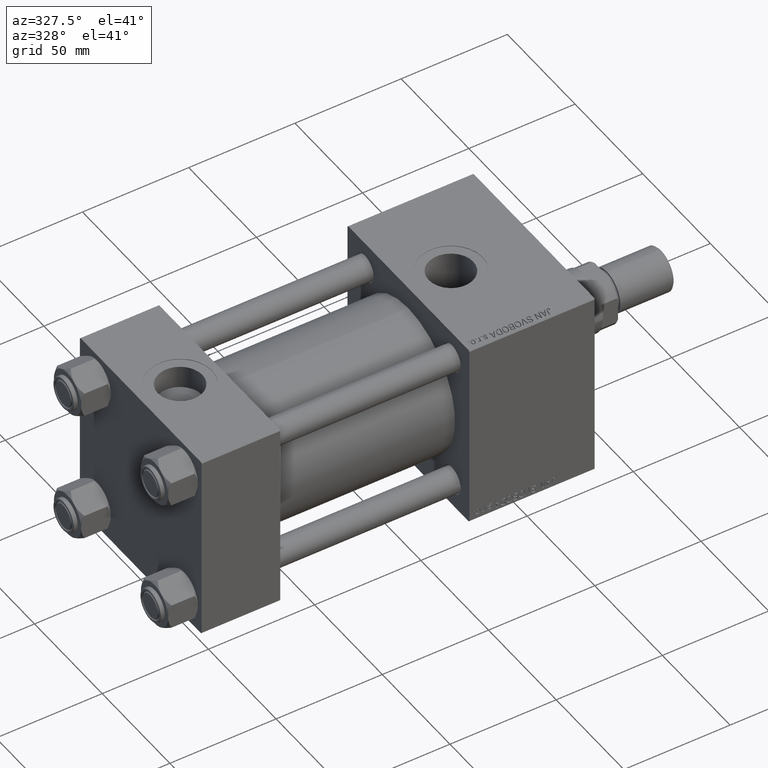
[diagram: clean part render]
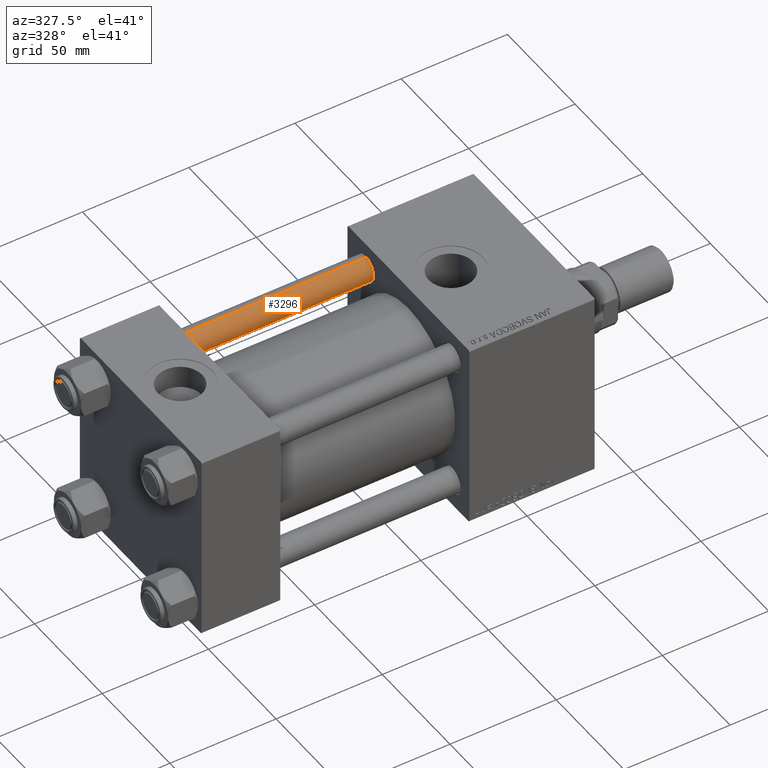
[diagram: same view with one face highlighted and labeled with its STEP entity id]
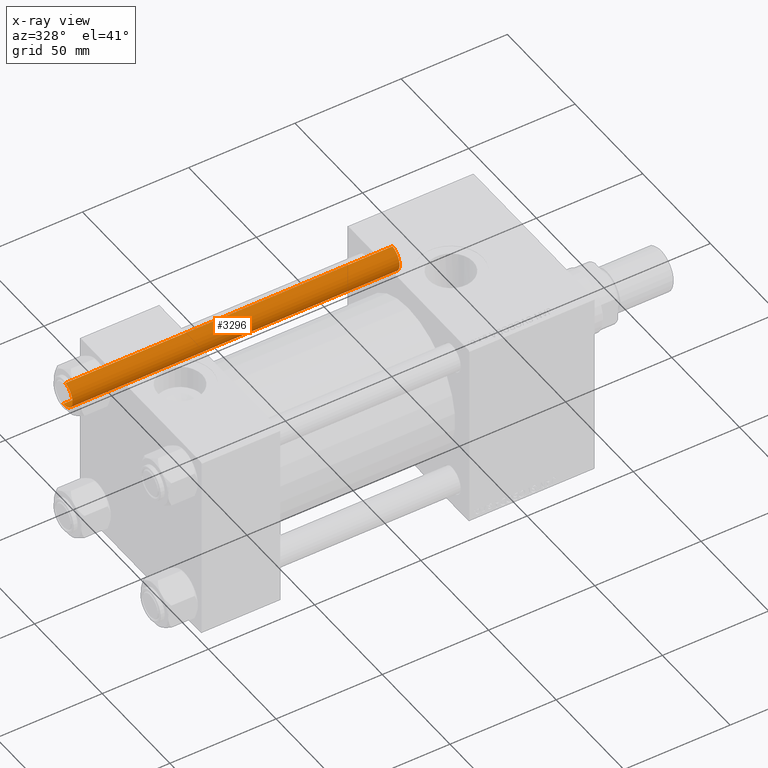
[diagram: x-ray of the same camera — body ghosted, the highlighted face saturated]
A machine part, auxiliary view. The second image highlights one B-rep face of the part: STEP entity #3296.
The next image is the same camera in x-ray: the body ghosted, the highlighted face saturated — about 0% of this face is hidden behind the body in this view.
In plain terms, the highlighted cylindrical surface (edge-blend (fillet) strip) has radius 6 mm, axis along (-1, 0, 0).
Its self-contained STEP definition (entity closure, byte-faithful):
#365 = DIRECTION ( 'NONE',  ( -0.000000000000000000, -0.000000000000000000, -1.000000000000000000 ) ) ;
#899 = DIRECTION ( 'NONE',  ( -0.000000000000000000, -0.000000000000000000, -1.000000000000000000 ) ) ;
#1455 = EDGE_CURVE ( 'NONE', #50665, #29402, #16563, .T. ) ;
#3221 = DIRECTION ( 'NONE',  ( 0.000000000000000000, 0.000000000000000000, -1.000000000000000000 ) ) ;
#3296 = ADVANCED_FACE ( 'NONE', ( #42303 ), #50260, .T. ) ;
#5072 = DIRECTION ( 'NONE',  ( -0.000000000000000000, -0.000000000000000000, -1.000000000000000000 ) ) ;
#7425 = VECTOR ( 'NONE', #5072, 1000.000000000000000 ) ;
#7968 = ORIENTED_EDGE ( 'NONE', *, *, #31673, .T. ) ;
#10204 = EDGE_LOOP ( 'NONE', ( #20978, #37414, #43848, #7968 ) ) ;
#10908 = DIRECTION ( 'NONE',  ( -1.000000000000000000, 0.000000000000000000, 0.000000000000000000 ) ) ;
#14173 = DIRECTION ( 'NONE',  ( -0.000000000000000000, -0.000000000000000000, 1.000000000000000000 ) ) ;
#15040 = CIRCLE ( 'NONE', #29846, 6.000000000000000888 ) ;
#16563 = LINE ( 'NONE', #36111, #28763 ) ;
#17525 = CARTESIAN_POINT ( 'NONE',  ( 0.000000000000000000, 0.000000000000000000, 0.4999999999999726885 ) ) ;
#17965 = CIRCLE ( 'NONE', #41015, 6.000000000000000888 ) ;
#20978 = ORIENTED_EDGE ( 'NONE', *, *, #34101, .F. ) ;
#22007 = VERTEX_POINT ( 'NONE', #37680 ) ;
#26611 = CARTESIAN_POINT ( 'NONE',  ( 0.000000000000000000, 0.000000000000000000, 155.0000000000000000 ) ) ;
#28763 = VECTOR ( 'NONE', #899, 1000.000000000000000 ) ;
#29402 = VERTEX_POINT ( 'NONE', #38475 ) ;
#29846 = AXIS2_PLACEMENT_3D ( 'NONE', #39456, #3221, #50777 ) ;
#31673 = EDGE_CURVE ( 'NONE', #29402, #22007, #17965, .T. ) ;
#34101 = EDGE_CURVE ( 'NONE', #44923, #22007, #35426, .T. ) ;
#35426 = LINE ( 'NONE', #39540, #7425 ) ;
#36111 = CARTESIAN_POINT ( 'NONE',  ( -6.000000000000000888, 0.000000000000000000, 155.0000000000000000 ) ) ;
#37414 = ORIENTED_EDGE ( 'NONE', *, *, #41596, .T. ) ;
#37657 = CARTESIAN_POINT ( 'NONE',  ( -6.000000000000000888, 0.000000000000000000, 154.5000000000000000 ) ) ;
#37680 = CARTESIAN_POINT ( 'NONE',  ( 6.000000000000000888, 7.347880794884120722E-16, 0.4999999999999726885 ) ) ;
#38475 = CARTESIAN_POINT ( 'NONE',  ( -6.000000000000000888, 0.000000000000000000, 0.4999999999999726885 ) ) ;
#39456 = CARTESIAN_POINT ( 'NONE',  ( 0.000000000000000000, 0.000000000000000000, 154.5000000000000000 ) ) ;
#39540 = CARTESIAN_POINT ( 'NONE',  ( 6.000000000000000888, 7.347880794884120722E-16, 155.0000000000000000 ) ) ;
#40283 = AXIS2_PLACEMENT_3D ( 'NONE', #26611, #365, #10908 ) ;
#41015 = AXIS2_PLACEMENT_3D ( 'NONE', #17525, #14173, #41451 ) ;
#41451 = DIRECTION ( 'NONE',  ( 1.000000000000000000, 0.000000000000000000, 0.000000000000000000 ) ) ;
#41596 = EDGE_CURVE ( 'NONE', #44923, #50665, #15040, .T. ) ;
#42303 = FACE_OUTER_BOUND ( 'NONE', #10204, .T. ) ;
#43848 = ORIENTED_EDGE ( 'NONE', *, *, #1455, .T. ) ;
#44923 = VERTEX_POINT ( 'NONE', #48632 ) ;
#48632 = CARTESIAN_POINT ( 'NONE',  ( 6.000000000000000888, 7.347880794884120722E-16, 154.5000000000000000 ) ) ;
#50260 = CYLINDRICAL_SURFACE ( 'NONE', #40283, 6.000000000000000888 ) ;
#50665 = VERTEX_POINT ( 'NONE', #37657 ) ;
#50777 = DIRECTION ( 'NONE',  ( 1.000000000000000000, 0.000000000000000000, 0.000000000000000000 ) ) ;